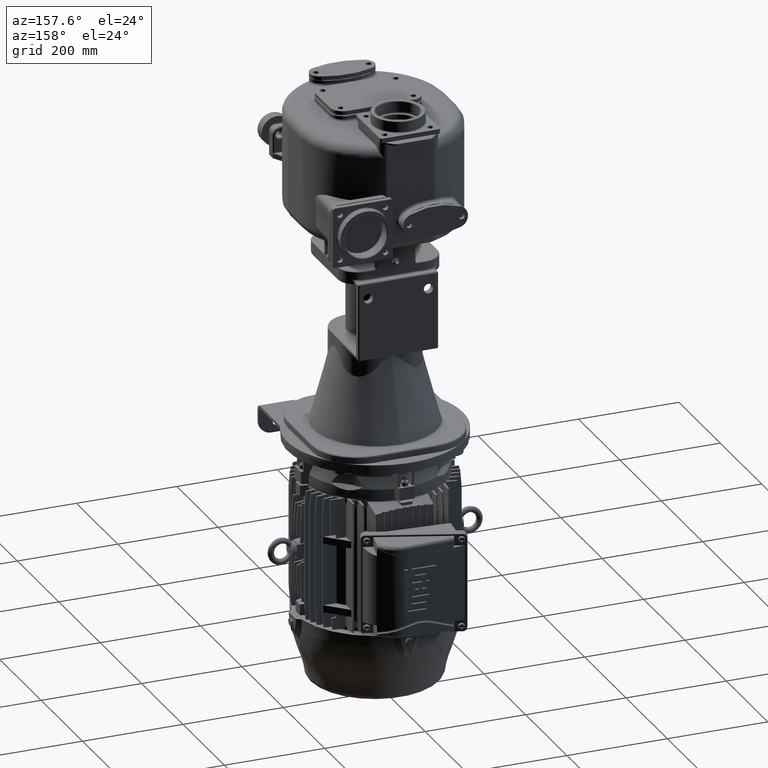
[diagram: clean part render]
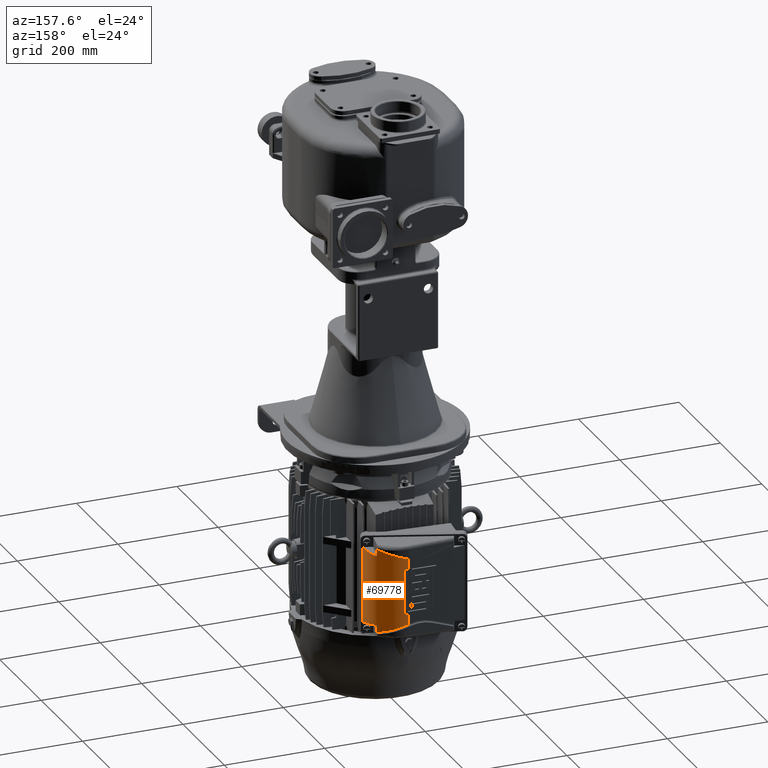
[diagram: same view with one face highlighted and labeled with its STEP entity id]
A machine part, auxiliary view. The second image highlights one B-rep face of the part: STEP entity #69778.
In plain terms, the highlighted cylindrical surface (edge-blend (fillet) strip) has radius 65 mm, axis along (0, 0, -1).
Its self-contained STEP definition (entity closure, byte-faithful):
#15719=CARTESIAN_POINT('',(4.190834572923E1,4.175413910142E2,
-7.050873075752E2));
#15720=CARTESIAN_POINT('',(4.298077710424E1,4.175166544235E2,
-7.047324235398E2));
#15721=CARTESIAN_POINT('',(4.513470395308E1,4.174134161332E2,
-7.040192483499E2));
#15722=CARTESIAN_POINT('',(4.939223334434E1,4.169968324264E2,
-7.026079396904E2));
#15723=CARTESIAN_POINT('',(5.463873192354E1,4.160890481844E2,
-7.008658154874E2));
#15724=CARTESIAN_POINT('',(5.978058496549E1,4.146698663983E2,
-6.991545207275E2));
#15725=CARTESIAN_POINT('',(6.383173072554E1,4.132209519702E2,
-6.978038798783E2));
#15726=CARTESIAN_POINT('',(6.683555213376E1,4.119737571755E2,
-6.968012182779E2));
#15727=CARTESIAN_POINT('',(6.975187075558E1,4.105892143024E2,
-6.958265952376E2));
#15728=CARTESIAN_POINT('',(7.353772612590E1,4.085563091635E2,
-6.945598459839E2));
#15729=CARTESIAN_POINT('',(7.716484816177E1,4.062444925266E2,
-6.933439326625E2));
#15730=CARTESIAN_POINT('',(8.063303463229E1,4.036529178846E2,
-6.921790980801E2));
#15731=CARTESIAN_POINT('',(8.315391922934E1,4.015639349275E2,
-6.913312988611E2));
#15732=CARTESIAN_POINT('',(8.558583693311E1,3.993318656778E2,
-6.905122846153E2));
#15733=CARTESIAN_POINT('',(8.712949307538E1,3.977632740203E2,
-6.899916601911E2));
#15734=CARTESIAN_POINT('',(8.788306266235E1,3.969575173701E2,
-6.897373176539E2));
#15736=CARTESIAN_POINT('',(4.100467390300E1,4.175559499965E2,
-7.053878556806E2));
#15737=CARTESIAN_POINT('',(4.130594450169E1,4.175531911110E2,
-7.052871492940E2));
#15738=CARTESIAN_POINT('',(4.160716983396E1,4.175483379051E2,
-7.051869713109E2));
#15739=CARTESIAN_POINT('',(4.190834572923E1,4.175413910142E2,
-7.050873075752E2));
#15741=DIRECTION('',(5.107421364755E-12,-4.682398426213E-14,1.E0));
#15742=VECTOR('',#15741,1.044023506129E2);
#15743=CARTESIAN_POINT('',(4.100467390247E1,4.175559499965E2,
-8.097902062936E2));
#15744=LINE('',#15743,#15742);
#15745=DIRECTION('',(0.E0,0.E0,-1.E0));
#15746=VECTOR('',#15745,8.4E1);
#15747=CARTESIAN_POINT('',(4.150374187272E1,4.175494634634E2,
-7.257893127372E2));
#15748=LINE('',#15747,#15746);
#15749=DIRECTION('',(0.E0,0.E0,1.E0));
#15750=VECTOR('',#15749,9.142843020393E1);
#15751=CARTESIAN_POINT('',(4.871435891974E1,4.170259435265E2,
-8.170044213955E2));
#15752=LINE('',#15751,#15750);
#15753=DIRECTION('',(-2.198771919601E-11,2.006007168275E-13,1.E0));
#15754=VECTOR('',#15753,2.040235061322E1);
#15755=CARTESIAN_POINT('',(4.100467390291E1,4.175559499965E2,
-8.371925569068E2));
#15756=LINE('',#15755,#15754);
#15757=CARTESIAN_POINT('',(4.190834571817E1,4.175413910145E2,
-8.374931050470E2));
#15758=CARTESIAN_POINT('',(4.160693964702E1,4.175483432145E2,
-8.373933651426E2));
#15759=CARTESIAN_POINT('',(4.130571453739E1,4.175531932169E2,
-8.372931864228E2));
#15760=CARTESIAN_POINT('',(4.100467390291E1,4.175559499965E2,
-8.371925569068E2));
#15762=CARTESIAN_POINT('',(8.788306265469E1,3.969575173783E2,
-8.528430949681E2));
#15763=CARTESIAN_POINT('',(8.712949306781E1,3.977632740284E2,
-8.525887524309E2));
#15764=CARTESIAN_POINT('',(8.558591648488E1,3.993317889919E2,
-8.520681547462E2));
#15765=CARTESIAN_POINT('',(8.234288225219E1,4.023083414229E2,
-8.509759749132E2));
#15766=CARTESIAN_POINT('',(7.807084851920E1,4.056672904102E2,
-8.495401952780E2));
#15767=CARTESIAN_POINT('',(7.353782294008E1,4.085562158382E2,
-8.480205992203E2));
#15768=CARTESIAN_POINT('',(6.975185252530E1,4.105892318768E2,
-8.467538111892E2));
#15769=CARTESIAN_POINT('',(6.683555701360E1,4.119737524727E2,
-8.457791959385E2));
#15770=CARTESIAN_POINT('',(6.383172945020E1,4.132209532012E2,
-8.447765322632E2));
#15771=CARTESIAN_POINT('',(5.978058570686E1,4.146698656854E2,
-8.434258920944E2));
#15772=CARTESIAN_POINT('',(5.463873167156E1,4.160890484312E2,
-8.417145969941E2));
#15773=CARTESIAN_POINT('',(4.939223337632E1,4.169968323950E2,
-8.399724729060E2));
#15774=CARTESIAN_POINT('',(4.513470395798E1,4.174134161389E2,
-8.385611641984E2));
#15775=CARTESIAN_POINT('',(4.298077709312E1,4.175166544237E2,
-8.378479890825E2));
#15776=CARTESIAN_POINT('',(4.190834571817E1,4.175413910145E2,
-8.374931050470E2));
#15778=CARTESIAN_POINT('',(9.244018559342E1,3.915176759224E2,
-8.543829372557E2));
#15779=CARTESIAN_POINT('',(9.102168440352E1,3.934121130246E2,
-8.539030129381E2));
#15780=CARTESIAN_POINT('',(8.949962539539E1,3.952290026104E2,
-8.533887123420E2));
#15781=CARTESIAN_POINT('',(8.788306265469E1,3.969575173783E2,
-8.528430949681E2));
#15783=DIRECTION('',(-2.055274948950E-9,-1.538929711997E-9,-1.E0));
#15784=VECTOR('',#15783,1.325324765140E1);
#15785=CARTESIAN_POINT('',(9.244018562066E1,3.915176759428E2,
-8.411296896043E2));
#15786=LINE('',#15785,#15784);
#15787=CARTESIAN_POINT('',(1.053859170731E2,3.543080190692E2,
-8.465152062936E2));
#15788=CARTESIAN_POINT('',(1.052935971525E2,3.577370884304E2,
-8.459525573050E2));
#15789=CARTESIAN_POINT('',(1.045746947578E2,3.644174460184E2,
-8.448889212775E2));
#15790=CARTESIAN_POINT('',(1.020484636782E2,3.739561868853E2,
-8.434605741171E2));
#15791=CARTESIAN_POINT('',(9.811378261368E1,3.830262521275E2,
-8.421947833094E2));
#15792=CARTESIAN_POINT('',(9.451404575172E1,3.887479836315E2,
-8.414636389920E2));
#15793=CARTESIAN_POINT('',(9.244018562066E1,3.915176759428E2,
-8.411296896043E2));
#15795=DIRECTION('',(0.E0,0.E0,-1.E0));
#15796=VECTOR('',#15795,1.5045E2);
#15797=CARTESIAN_POINT('',(1.053859170731E2,3.543080190692E2,
-6.960652062936E2));
#15798=LINE('',#15797,#15796);
#15799=CARTESIAN_POINT('',(9.244018562066E1,3.915176759428E2,
-7.014507229828E2));
#15800=CARTESIAN_POINT('',(9.451404575172E1,3.887479836315E2,
-7.011167735952E2));
#15801=CARTESIAN_POINT('',(9.811378261368E1,3.830262521275E2,
-7.003856292777E2));
#15802=CARTESIAN_POINT('',(1.020484636782E2,3.739561868853E2,
-6.991198384701E2));
#15803=CARTESIAN_POINT('',(1.045746947578E2,3.644174460184E2,
-6.976914913096E2));
#15804=CARTESIAN_POINT('',(1.052935971525E2,3.577370884304E2,
-6.966278552822E2));
#15805=CARTESIAN_POINT('',(1.053859170731E2,3.543080190692E2,
-6.960652062936E2));
#15807=DIRECTION('',(1.943754045215E-9,1.455431107920E-9,-1.E0));
#15808=VECTOR('',#15807,1.325324765140E1);
#15809=CARTESIAN_POINT('',(9.244018559490E1,3.915176759235E2,
-6.881974753314E2));
#15810=LINE('',#15809,#15808);
#15811=CARTESIAN_POINT('',(8.788306266235E1,3.969575173701E2,
-6.897373176539E2));
#15812=CARTESIAN_POINT('',(8.949962540214E1,3.952290026030E2,
-6.891917002803E2));
#15813=CARTESIAN_POINT('',(9.102168449196E1,3.934121130953E2,
-6.886773996203E2));
#15814=CARTESIAN_POINT('',(9.244018559490E1,3.915176759235E2,
-6.881974753314E2));
#15955=CARTESIAN_POINT('',(4.100467390247E1,4.175559499965E2,
-8.097902062936E2));
#15956=CARTESIAN_POINT('',(4.117103872710E1,4.175544265106E2,
-8.097902062936E2));
#15957=CARTESIAN_POINT('',(4.133739471713E1,4.175522643288E2,
-8.097899084396E2));
#15958=CARTESIAN_POINT('',(4.150374187272E1,4.175494634634E2,
-8.097893127372E2));
#16080=CARTESIAN_POINT('',(4.871435891974E1,4.170259435265E2,
-8.170044213955E2));
#16081=CARTESIAN_POINT('',(4.615693978733E1,4.173553991475E2,
-8.168617204225E2));
#16082=CARTESIAN_POINT('',(4.358706387179E1,4.175323017606E2,
-8.167902062936E2));
#16083=CARTESIAN_POINT('',(4.100467390246E1,4.175559499965E2,
-8.167902062936E2));
#16105=CARTESIAN_POINT('',(4.150374187272E1,4.175494634634E2,
-7.257893127372E2));
#16106=CARTESIAN_POINT('',(4.391883924515E1,4.175087993316E2,
-7.257806640824E2));
#16107=CARTESIAN_POINT('',(4.632236067557E1,4.173340890537E2,
-7.257094618741E2));
#16108=CARTESIAN_POINT('',(4.871435891974E1,4.170259435265E2,
-7.255759911916E2));
#16214=CARTESIAN_POINT('',(9.244018559342E1,3.915176759224E2,
-8.543829372557E2));
#48474=CARTESIAN_POINT('',(9.244018562066E1,3.915176759428E2,
-7.014507229828E2));
#48475=VERTEX_POINT('',#48474);
#48476=CARTESIAN_POINT('',(9.244018559490E1,3.915176759235E2,
-6.881974753314E2));
#48477=VERTEX_POINT('',#48476);
#48491=VERTEX_POINT('',#16214);
#48492=CARTESIAN_POINT('',(9.244018562066E1,3.915176759428E2,
-8.411296896043E2));
#48493=VERTEX_POINT('',#48492);
#48502=VERTEX_POINT('',#15719);
#48503=VERTEX_POINT('',#15734);
#48510=VERTEX_POINT('',#15805);
#48511=CARTESIAN_POINT('',(1.053859170731E2,3.543080190692E2,
-8.465152062936E2));
#48512=VERTEX_POINT('',#48511);
#48521=CARTESIAN_POINT('',(4.150374187272E1,4.175494634634E2,
-7.257893127372E2));
#48522=CARTESIAN_POINT('',(4.150374187272E1,4.175494634634E2,
-8.097893127372E2));
#48523=VERTEX_POINT('',#48521);
#48524=VERTEX_POINT('',#48522);
#48525=VERTEX_POINT('',#15955);
#48526=CARTESIAN_POINT('',(4.100467390300E1,4.175559499965E2,
-7.053878556806E2));
#48527=VERTEX_POINT('',#48526);
#48528=VERTEX_POINT('',#15781);
#48529=VERTEX_POINT('',#15776);
#48530=VERTEX_POINT('',#15760);
#48531=CARTESIAN_POINT('',(4.100467390246E1,4.175559499965E2,
-8.167902062936E2));
#48532=VERTEX_POINT('',#48531);
#48537=VERTEX_POINT('',#16080);
#48538=CARTESIAN_POINT('',(4.871435891974E1,4.170259435265E2,
-7.255759911916E2));
#48539=VERTEX_POINT('',#48538);
#69741=CARTESIAN_POINT('',(4.040946136588E1,3.525586752687E2,
-6.720652062936E2));
#69742=DIRECTION('',(0.E0,0.E0,-1.E0));
#69743=DIRECTION('',(9.157115947416E-3,9.999580727348E-1,0.E0));
#69744=AXIS2_PLACEMENT_3D('',#69741,#69742,#69743);
#69745=CYLINDRICAL_SURFACE('',#69744,6.5E1);
#69747=ORIENTED_EDGE('',*,*,#69746,.F.);
#69749=ORIENTED_EDGE('',*,*,#69748,.F.);
#69750=ORIENTED_EDGE('',*,*,#69458,.F.);
#69752=ORIENTED_EDGE('',*,*,#69751,.T.);
#69754=ORIENTED_EDGE('',*,*,#69753,.F.);
#69756=ORIENTED_EDGE('',*,*,#69755,.T.);
#69758=ORIENTED_EDGE('',*,*,#69757,.F.);
#69760=ORIENTED_EDGE('',*,*,#69759,.T.);
#69761=ORIENTED_EDGE('',*,*,#69434,.F.);
#69763=ORIENTED_EDGE('',*,*,#69762,.F.);
#69765=ORIENTED_EDGE('',*,*,#69764,.F.);
#69767=ORIENTED_EDGE('',*,*,#69766,.F.);
#69768=ORIENTED_EDGE('',*,*,#69586,.F.);
#69769=ORIENTED_EDGE('',*,*,#69734,.F.);
#69770=ORIENTED_EDGE('',*,*,#69042,.F.);
#69772=ORIENTED_EDGE('',*,*,#69771,.F.);
#69773=ORIENTED_EDGE('',*,*,#69249,.F.);
#69775=ORIENTED_EDGE('',*,*,#69774,.F.);
#69776=EDGE_LOOP('',(#69747,#69749,#69750,#69752,#69754,#69756,#69758,#69760,
#69761,#69763,#69765,#69767,#69768,#69769,#69770,#69772,#69773,#69775));
#69777=FACE_OUTER_BOUND('',#69776,.F.);
#69778=ADVANCED_FACE('',(#69777),#69745,.T.);
#15735=B_SPLINE_CURVE_WITH_KNOTS('',3,(#15719,#15720,#15721,#15722,#15723,
#15724,#15725,#15726,#15727,#15728,#15729,#15730,#15731,#15732,#15733,#15734),
.UNSPECIFIED.,.F.,.F.,(4,1,1,1,1,1,1,1,1,1,1,1,1,4),(0.E0,6.25E-2,1.25E-1,
2.5E-1,3.75E-1,4.375E-1,5.E-1,5.625E-1,6.25E-1,7.5E-1,8.125E-1,8.75E-1,9.375E-1,
1.E0),.UNSPECIFIED.);
#15740=B_SPLINE_CURVE_WITH_KNOTS('',3,(#15736,#15737,#15738,#15739),
.UNSPECIFIED.,.F.,.F.,(4,4),(0.E0,1.E0),.UNSPECIFIED.);
#15761=B_SPLINE_CURVE_WITH_KNOTS('',3,(#15757,#15758,#15759,#15760),
.UNSPECIFIED.,.F.,.F.,(4,4),(0.E0,1.E0),.UNSPECIFIED.);
#15777=B_SPLINE_CURVE_WITH_KNOTS('',3,(#15762,#15763,#15764,#15765,#15766,
#15767,#15768,#15769,#15770,#15771,#15772,#15773,#15774,#15775,#15776),
.UNSPECIFIED.,.F.,.F.,(4,1,1,1,1,1,1,1,1,1,1,1,4),(0.E0,6.25E-2,1.25E-1,2.5E-1,
3.75E-1,4.375E-1,5.E-1,5.625E-1,6.25E-1,7.5E-1,8.75E-1,9.375E-1,1.E0),
.UNSPECIFIED.);
#15782=B_SPLINE_CURVE_WITH_KNOTS('',3,(#15778,#15779,#15780,#15781),
.UNSPECIFIED.,.F.,.F.,(4,4),(0.E0,1.E0),.UNSPECIFIED.);
#15794=B_SPLINE_CURVE_WITH_KNOTS('',3,(#15787,#15788,#15789,#15790,#15791,
#15792,#15793),.UNSPECIFIED.,.F.,.F.,(4,1,1,1,4),(0.E0,2.5E-1,5.E-1,7.5E-1,
1.E0),.UNSPECIFIED.);
#15806=B_SPLINE_CURVE_WITH_KNOTS('',3,(#15799,#15800,#15801,#15802,#15803,
#15804,#15805),.UNSPECIFIED.,.F.,.F.,(4,1,1,1,4),(0.E0,2.5E-1,5.E-1,7.5E-1,
1.E0),.UNSPECIFIED.);
#15815=B_SPLINE_CURVE_WITH_KNOTS('',3,(#15811,#15812,#15813,#15814),
.UNSPECIFIED.,.F.,.F.,(4,4),(0.E0,1.E0),.UNSPECIFIED.);
#15959=B_SPLINE_CURVE_WITH_KNOTS('',3,(#15955,#15956,#15957,#15958),
.UNSPECIFIED.,.F.,.F.,(4,4),(0.E0,1.E0),.UNSPECIFIED.);
#16084=B_SPLINE_CURVE_WITH_KNOTS('',3,(#16080,#16081,#16082,#16083),
.UNSPECIFIED.,.F.,.F.,(4,4),(0.E0,1.E0),.UNSPECIFIED.);
#16109=B_SPLINE_CURVE_WITH_KNOTS('',3,(#16105,#16106,#16107,#16108),
.UNSPECIFIED.,.F.,.F.,(4,4),(0.E0,1.E0),.UNSPECIFIED.);
#69042=EDGE_CURVE('',#48510,#48512,#15798,.T.);
#69249=EDGE_CURVE('',#48477,#48475,#15810,.T.);
#69434=EDGE_CURVE('',#48530,#48532,#15756,.T.);
#69458=EDGE_CURVE('',#48525,#48527,#15744,.T.);
#69586=EDGE_CURVE('',#48493,#48491,#15786,.T.);
#69734=EDGE_CURVE('',#48512,#48493,#15794,.T.);
#69746=EDGE_CURVE('',#48502,#48503,#15735,.T.);
#69748=EDGE_CURVE('',#48527,#48502,#15740,.T.);
#69751=EDGE_CURVE('',#48525,#48524,#15959,.T.);
#69753=EDGE_CURVE('',#48523,#48524,#15748,.T.);
#69755=EDGE_CURVE('',#48523,#48539,#16109,.T.);
#69757=EDGE_CURVE('',#48537,#48539,#15752,.T.);
#69759=EDGE_CURVE('',#48537,#48532,#16084,.T.);
#69762=EDGE_CURVE('',#48529,#48530,#15761,.T.);
#69764=EDGE_CURVE('',#48528,#48529,#15777,.T.);
#69766=EDGE_CURVE('',#48491,#48528,#15782,.T.);
#69771=EDGE_CURVE('',#48475,#48510,#15806,.T.);
#69774=EDGE_CURVE('',#48503,#48477,#15815,.T.);